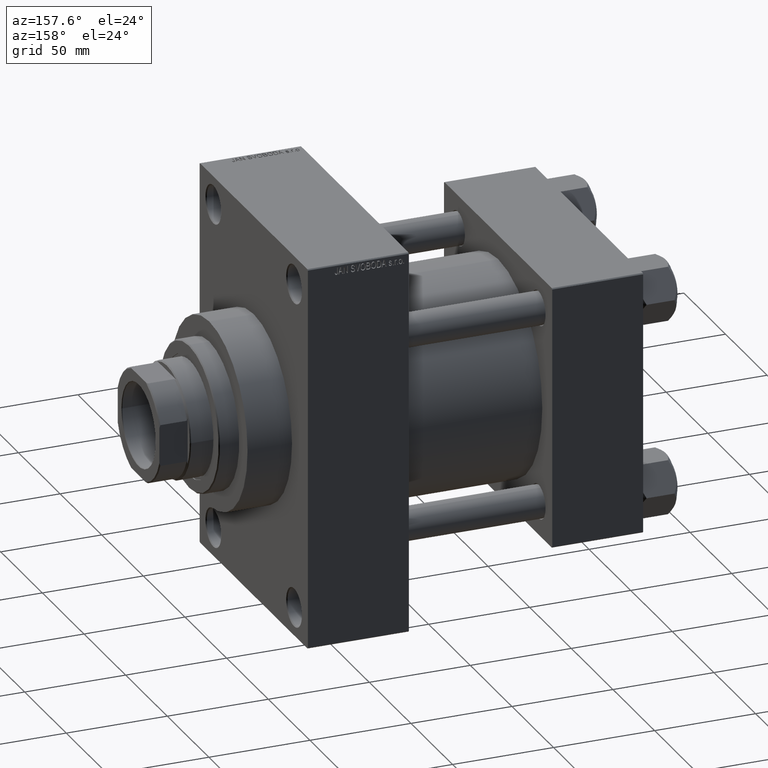
[diagram: clean part render]
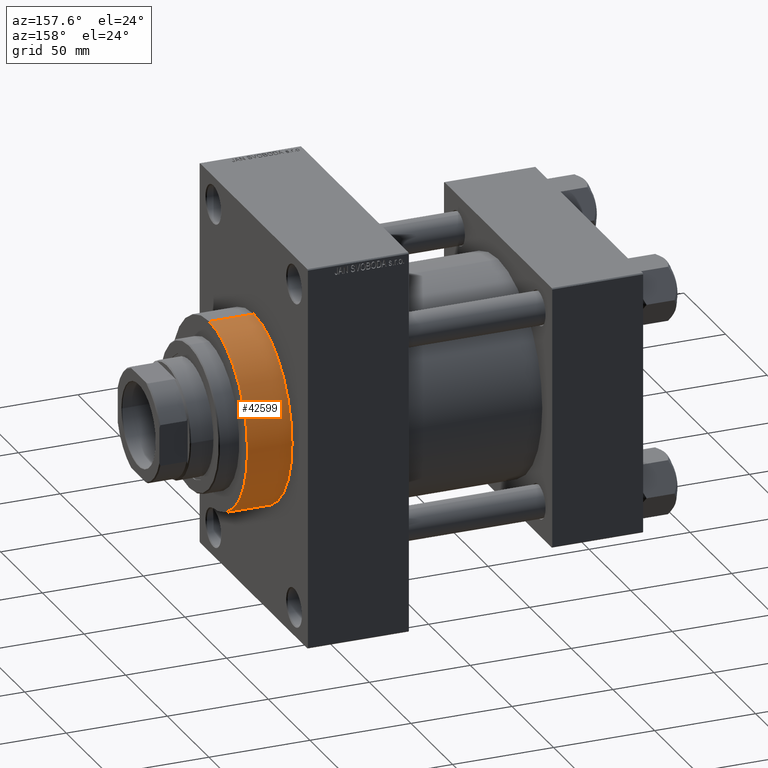
[diagram: same view with one face highlighted and labeled with its STEP entity id]
A machine part, auxiliary view. The second image highlights one B-rep face of the part: STEP entity #42599.
In plain terms, the highlighted cylindrical surface (partial cylindrical patch) has radius 46 mm, axis along (-1, -0, -0).
Its self-contained STEP definition (entity closure, byte-faithful):
#854 = AXIS2_PLACEMENT_3D ( 'NONE', #27693, #23611, #38337 ) ;
#3659 = ORIENTED_EDGE ( 'NONE', *, *, #20070, .T. ) ;
#5971 = DIRECTION ( 'NONE',  ( 0.000000000000000000, 0.000000000000000000, -1.000000000000000000 ) ) ;
#7676 = VECTOR ( 'NONE', #15294, 1000.000000000000000 ) ;
#9464 = DIRECTION ( 'NONE',  ( 0.000000000000000000, 0.000000000000000000, 1.000000000000000000 ) ) ;
#13177 = CIRCLE ( 'NONE', #854, 46.00000000000000000 ) ;
#14698 = VERTEX_POINT ( 'NONE', #21875 ) ;
#15294 = DIRECTION ( 'NONE',  ( -1.000000000000000000, -0.000000000000000000, -0.000000000000000000 ) ) ;
#16234 = CYLINDRICAL_SURFACE ( 'NONE', #17865, 46.00000000000000000 ) ;
#17226 = EDGE_LOOP ( 'NONE', ( #18217, #3659, #36267, #25861 ) ) ;
#17865 = AXIS2_PLACEMENT_3D ( 'NONE', #28061, #38222, #9464 ) ;
#18217 = ORIENTED_EDGE ( 'NONE', *, *, #43169, .F. ) ;
#18696 = CARTESIAN_POINT ( 'NONE',  ( 187.9999999999999716, 0.000000000000000000, 46.00000000000000000 ) ) ;
#19067 = CARTESIAN_POINT ( 'NONE',  ( 165.9999999999999716, 5.633375276077824704E-15, -46.00000000000000000 ) ) ;
#20070 = EDGE_CURVE ( 'NONE', #43708, #34348, #25937, .T. ) ;
#20130 = EDGE_CURVE ( 'NONE', #40587, #14698, #22546, .T. ) ;
#21875 = CARTESIAN_POINT ( 'NONE',  ( 165.9999999999999716, 0.000000000000000000, 46.00000000000000000 ) ) ;
#22546 = LINE ( 'NONE', #18696, #7676 ) ;
#23611 = DIRECTION ( 'NONE',  ( 1.000000000000000000, 0.000000000000000000, 0.000000000000000000 ) ) ;
#24071 = DIRECTION ( 'NONE',  ( 1.000000000000000000, 0.000000000000000000, 0.000000000000000000 ) ) ;
#24832 = CIRCLE ( 'NONE', #30245, 46.00000000000000000 ) ;
#25861 = ORIENTED_EDGE ( 'NONE', *, *, #20130, .F. ) ;
#25937 = LINE ( 'NONE', #40672, #40048 ) ;
#26872 = EDGE_CURVE ( 'NONE', #34348, #14698, #13177, .T. ) ;
#27693 = CARTESIAN_POINT ( 'NONE',  ( 165.9999999999999716, 0.000000000000000000, 0.000000000000000000 ) ) ;
#27931 = CARTESIAN_POINT ( 'NONE',  ( 187.9999999999999716, 0.000000000000000000, 0.000000000000000000 ) ) ;
#28061 = CARTESIAN_POINT ( 'NONE',  ( 187.9999999999999716, 0.000000000000000000, 0.000000000000000000 ) ) ;
#30245 = AXIS2_PLACEMENT_3D ( 'NONE', #27931, #24071, #5971 ) ;
#33974 = CARTESIAN_POINT ( 'NONE',  ( 187.9999999999999716, 0.000000000000000000, 46.00000000000000000 ) ) ;
#34348 = VERTEX_POINT ( 'NONE', #19067 ) ;
#36267 = ORIENTED_EDGE ( 'NONE', *, *, #26872, .T. ) ;
#38222 = DIRECTION ( 'NONE',  ( -1.000000000000000000, -0.000000000000000000, -0.000000000000000000 ) ) ;
#38263 = DIRECTION ( 'NONE',  ( -1.000000000000000000, -0.000000000000000000, -0.000000000000000000 ) ) ;
#38337 = DIRECTION ( 'NONE',  ( 0.000000000000000000, 0.000000000000000000, -1.000000000000000000 ) ) ;
#40048 = VECTOR ( 'NONE', #38263, 1000.000000000000000 ) ;
#40587 = VERTEX_POINT ( 'NONE', #33974 ) ;
#40672 = CARTESIAN_POINT ( 'NONE',  ( 187.9999999999999716, 5.633375276077824704E-15, -46.00000000000000000 ) ) ;
#41537 = CARTESIAN_POINT ( 'NONE',  ( 187.9999999999999716, 5.633375276077824704E-15, -46.00000000000000000 ) ) ;
#42599 = ADVANCED_FACE ( 'NONE', ( #46192 ), #16234, .T. ) ;
#43169 = EDGE_CURVE ( 'NONE', #43708, #40587, #24832, .T. ) ;
#43708 = VERTEX_POINT ( 'NONE', #41537 ) ;
#46192 = FACE_OUTER_BOUND ( 'NONE', #17226, .T. ) ;